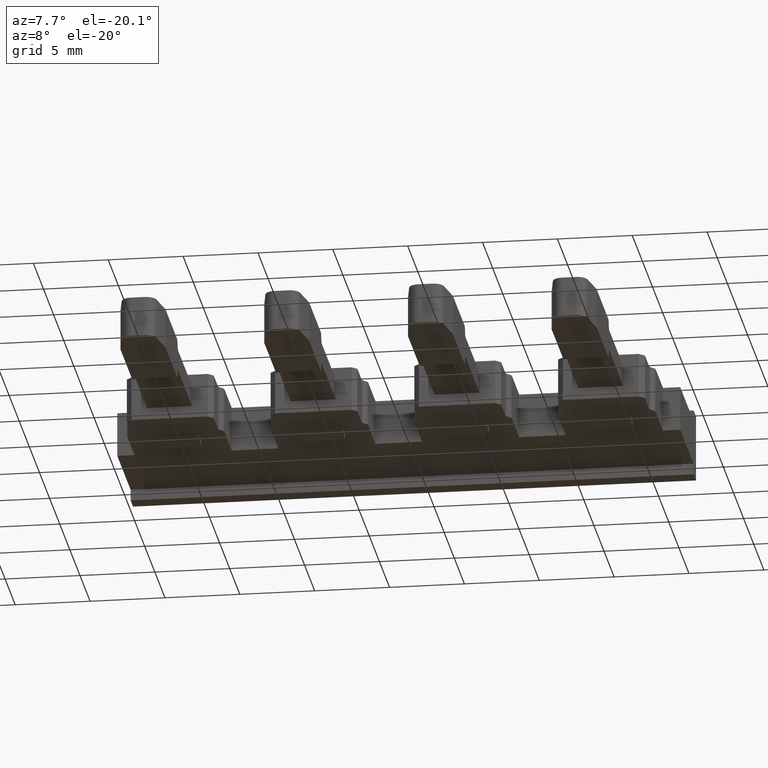
[diagram: clean part render]
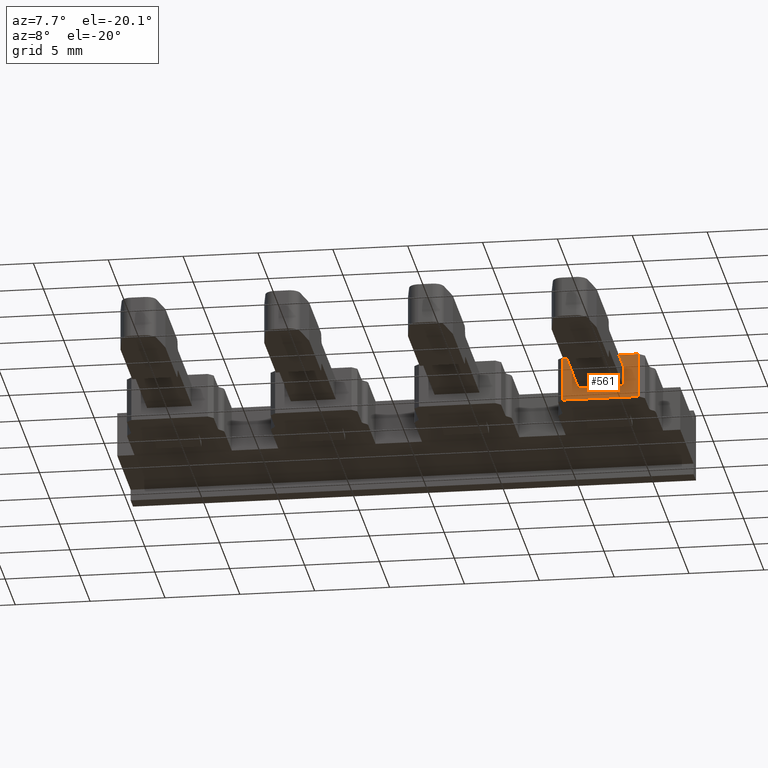
[diagram: same view with one face highlighted and labeled with its STEP entity id]
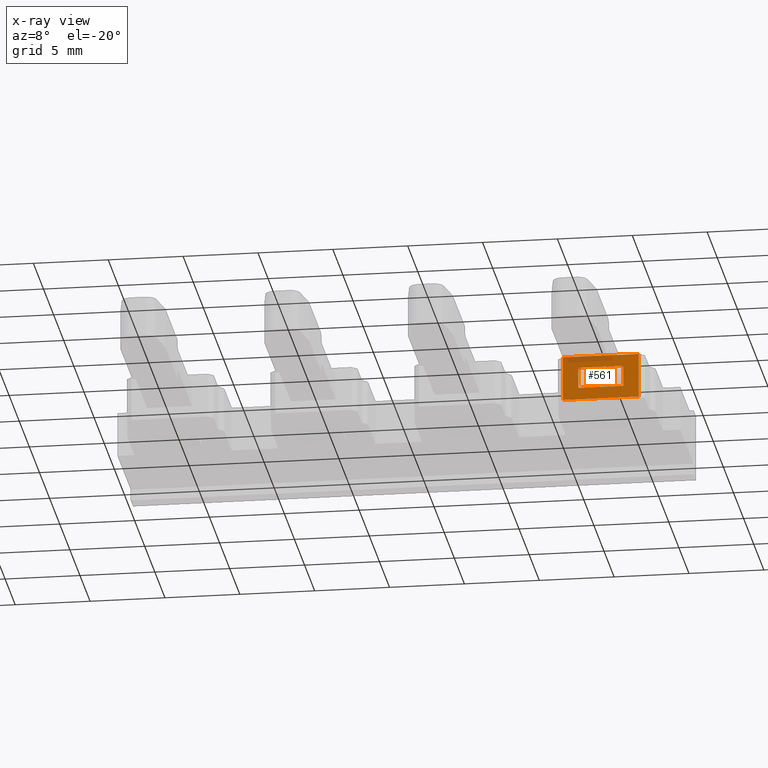
[diagram: x-ray of the same camera — body ghosted, the highlighted face saturated]
A machine part, auxiliary view. The second image highlights one B-rep face of the part: STEP entity #561.
The next image is the same camera in x-ray: the body ghosted, the highlighted face saturated — about 11% of this face is hidden behind the body in this view.
In plain terms, the highlighted planar face has unit normal (0, -1, 0).
Its self-contained STEP definition (entity closure, byte-faithful):
#105 = EDGE_CURVE ( 'NONE', #5032, #5101, #1403, .T. ) ;
#132 = EDGE_CURVE ( 'NONE', #5175, #5156, #1463, .T. ) ;
#283 = EDGE_CURVE ( 'NONE', #5208, #5205, #3727, .T. ) ;
#285 = EDGE_CURVE ( 'NONE', #5298, #5230, #3748, .T. ) ;
#316 = EDGE_CURVE ( 'NONE', #5230, #5208, #3838, .T. ) ;
#354 = EDGE_CURVE ( 'NONE', #5156, #5032, #3979, .T. ) ;
#370 = EDGE_CURVE ( 'NONE', #5205, #5298, #4038, .T. ) ;
#377 = EDGE_CURVE ( 'NONE', #5101, #5175, #4026, .T. ) ;
#561 = ADVANCED_FACE ( 'NONE', ( #2763, #2751 ), #2730, .T. ) ;
#1382 = CARTESIAN_POINT ( 'NONE',  ( 1157.267020338350900, 659.7892820011524000, 0.0000000000000000000 ) ) ;
#1403 = LINE ( 'NONE', #1382, #3029 ) ;
#1404 = DIRECTION ( 'NONE',  ( 1.000000000000000000, 0.0000000000000000000, 0.0000000000000000000 ) ) ;
#1463 = LINE ( 'NONE', #1482, #3072 ) ;
#1476 = DIRECTION ( 'NONE',  ( -1.000000000000000000, 0.0000000000000000000, 0.0000000000000000000 ) ) ;
#1482 = CARTESIAN_POINT ( 'NONE',  ( 1146.994467408302400, 659.7892820011524000, 3.000000000000000000 ) ) ;
#2059 = CARTESIAN_POINT ( 'NONE',  ( 1150.664464850728600, 659.7892820011524000, 0.0000000000000000000 ) ) ;
#2092 = CARTESIAN_POINT ( 'NONE',  ( 1155.724470984202500, 659.7892820011524000, 0.0000000000000000000 ) ) ;
#2212 = CARTESIAN_POINT ( 'NONE',  ( 1150.664464850728600, 659.7892820011524000, 3.000000000000000000 ) ) ;
#2239 = CARTESIAN_POINT ( 'NONE',  ( 1154.694444700027600, 659.7892820011524000, 0.8000061035156760300 ) ) ;
#2250 = CARTESIAN_POINT ( 'NONE',  ( 1155.724470984202500, 659.7892820011524000, 3.000000000000000000 ) ) ;
#2256 = CARTESIAN_POINT ( 'NONE',  ( 1151.694438266101500, 659.7892820011524000, 0.8000061035155150400 ) ) ;
#2280 = CARTESIAN_POINT ( 'NONE',  ( 1151.694438810618700, 659.7892820011524000, 2.199999999999890000 ) ) ;
#2324 = CARTESIAN_POINT ( 'NONE',  ( 1154.694444914909600, 659.7892820011524000, 2.200000000000050800 ) ) ;
#2723 = DIRECTION ( 'NONE',  ( 0.0000000000000000000, -0.0000000000000000000, -1.000000000000000000 ) ) ;
#2730 = PLANE ( 'NONE',  #3504 ) ;
#2735 = CARTESIAN_POINT ( 'NONE',  ( 1157.267020338350900, 659.7892820011524000, 3.759999999999999800 ) ) ;
#2739 = DIRECTION ( 'NONE',  ( 0.0000000000000000000, -1.000000000000000000, 0.0000000000000000000 ) ) ;
#2751 = FACE_OUTER_BOUND ( 'NONE', #4869, .T. ) ;
#2763 = FACE_BOUND ( 'NONE', #4894, .T. ) ;
#3029 = VECTOR ( 'NONE', #1404, 1000.000000000000000 ) ;
#3072 = VECTOR ( 'NONE', #1476, 1000.000000000000000 ) ;
#3183 = VECTOR ( 'NONE', #3767, 1000.000000000000000 ) ;
#3215 = VECTOR ( 'NONE', #3728, 1000.000000000000000 ) ;
#3296 = VECTOR ( 'NONE', #3889, 1000.000000000000000 ) ;
#3311 = VECTOR ( 'NONE', #4018, 1000.000000000000000 ) ;
#3340 = VECTOR ( 'NONE', #4004, 1000.000000000000000 ) ;
#3345 = VECTOR ( 'NONE', #4094, 1000.000000000000000 ) ;
#3504 = AXIS2_PLACEMENT_3D ( 'NONE', #2735, #2739, #2723 ) ;
#3727 = LINE ( 'NONE', #3768, #3215 ) ;
#3728 = DIRECTION ( 'NONE',  ( -5.364441115334515700E-014, 0.0000000000000000000, 1.000000000000000000 ) ) ;
#3743 = CARTESIAN_POINT ( 'NONE',  ( 1154.694439803195100, 659.7892820011524000, 3.759999999999862100 ) ) ;
#3748 = LINE ( 'NONE', #3743, #3183 ) ;
#3767 = DIRECTION ( 'NONE',  ( 5.364441115334512500E-014, 0.0000000000000000000, -1.000000000000000000 ) ) ;
#3768 = CARTESIAN_POINT ( 'NONE',  ( 1151.694438253052300, 659.7892820011524000, 3.759999999999700900 ) ) ;
#3832 = CARTESIAN_POINT ( 'NONE',  ( 1157.267020338351100, 659.7892820011524000, 0.8000061035158142500 ) ) ;
#3838 = LINE ( 'NONE', #3832, #3296 ) ;
#3889 = DIRECTION ( 'NONE',  ( -1.000000000000000000, 0.0000000000000000000, -5.364441115334514400E-014 ) ) ;
#3979 = LINE ( 'NONE', #4007, #3340 ) ;
#4004 = DIRECTION ( 'NONE',  ( 0.0000000000000000000, 0.0000000000000000000, -1.000000000000000000 ) ) ;
#4007 = CARTESIAN_POINT ( 'NONE',  ( 1150.664464850728600, 659.7892820011524000, 3.000000000000000000 ) ) ;
#4016 = CARTESIAN_POINT ( 'NONE',  ( 1157.267020338350900, 659.7892820011524000, 2.200000000000188900 ) ) ;
#4018 = DIRECTION ( 'NONE',  ( 1.000000000000000000, 0.0000000000000000000, 5.364441115334514400E-014 ) ) ;
#4026 = LINE ( 'NONE', #4031, #3345 ) ;
#4031 = CARTESIAN_POINT ( 'NONE',  ( 1155.724470984202500, 659.7892820011524000, 3.000000000000000000 ) ) ;
#4038 = LINE ( 'NONE', #4016, #3311 ) ;
#4094 = DIRECTION ( 'NONE',  ( 0.0000000000000000000, 0.0000000000000000000, 1.000000000000000000 ) ) ;
#4554 = ORIENTED_EDGE ( 'NONE', *, *, #285, .T. ) ;
#4557 = ORIENTED_EDGE ( 'NONE', *, *, #370, .T. ) ;
#4569 = ORIENTED_EDGE ( 'NONE', *, *, #377, .T. ) ;
#4592 = ORIENTED_EDGE ( 'NONE', *, *, #316, .T. ) ;
#4602 = ORIENTED_EDGE ( 'NONE', *, *, #354, .T. ) ;
#4609 = ORIENTED_EDGE ( 'NONE', *, *, #132, .T. ) ;
#4614 = ORIENTED_EDGE ( 'NONE', *, *, #283, .T. ) ;
#4620 = ORIENTED_EDGE ( 'NONE', *, *, #105, .T. ) ;
#4869 = EDGE_LOOP ( 'NONE', ( #4609, #4602, #4620, #4569 ) ) ;
#4894 = EDGE_LOOP ( 'NONE', ( #4557, #4554, #4592, #4614 ) ) ;
#5032 = VERTEX_POINT ( 'NONE', #2059 ) ;
#5101 = VERTEX_POINT ( 'NONE', #2092 ) ;
#5156 = VERTEX_POINT ( 'NONE', #2212 ) ;
#5175 = VERTEX_POINT ( 'NONE', #2250 ) ;
#5205 = VERTEX_POINT ( 'NONE', #2280 ) ;
#5208 = VERTEX_POINT ( 'NONE', #2256 ) ;
#5230 = VERTEX_POINT ( 'NONE', #2239 ) ;
#5298 = VERTEX_POINT ( 'NONE', #2324 ) ;